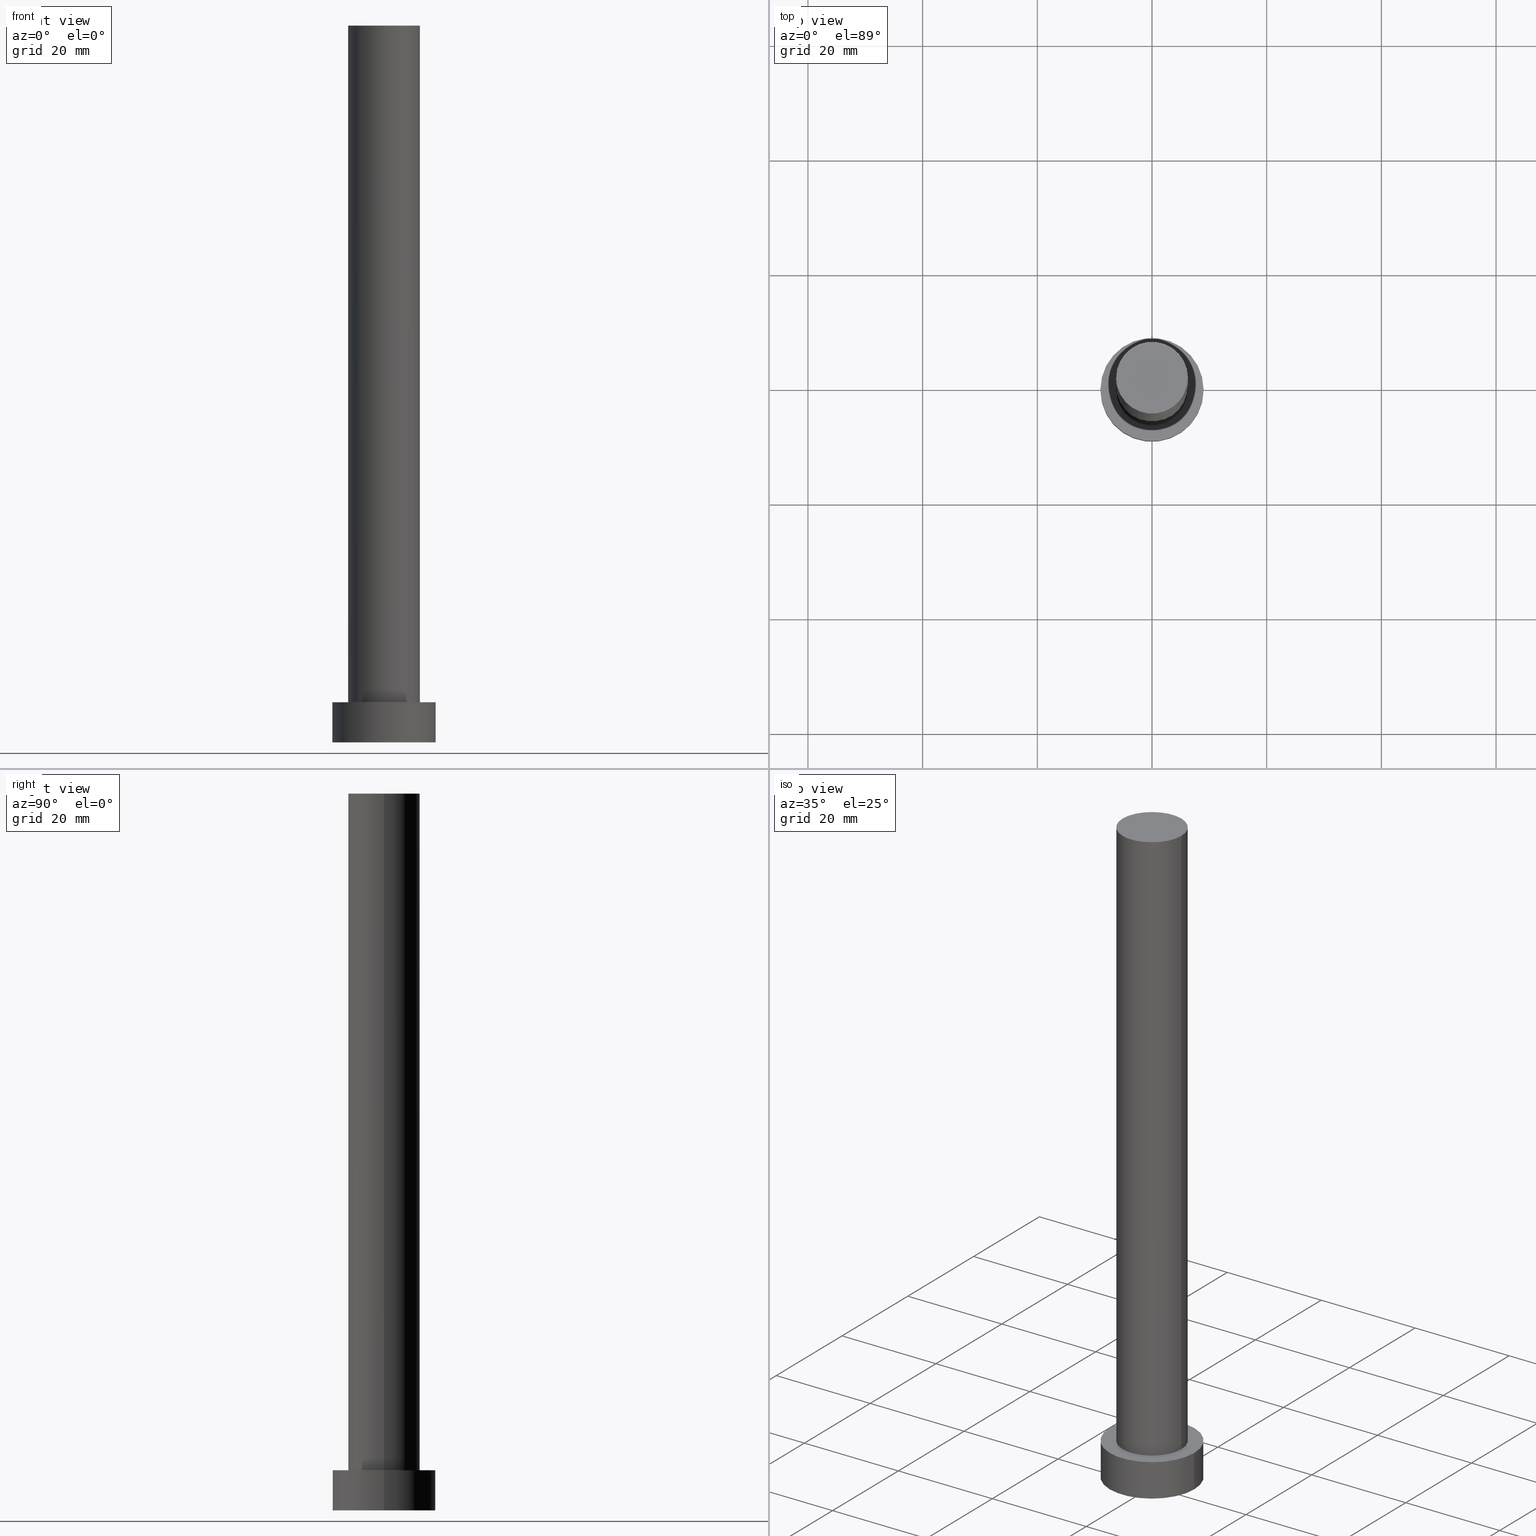
[diagram: canonical four-view strip — front | top / right | iso, engineering-drawing reading convention]
A machine part, canonical four-view strip (front | top / right | iso — engineering-drawing reading convention). The complete STEP part file that produces these views, byte-faithful:
ISO-10303-21;
HEADER;
FILE_DESCRIPTION (( 'STEP AP203' ),
    '1' );
FILE_NAME ('c26a.STEP',
    '2023-02-13T10:38:38',
    ( '' ),
    ( '' ),
    'SwSTEP 2.0',
    'SolidWorks 2019',
    '' );
FILE_SCHEMA (( 'CONFIG_CONTROL_DESIGN' ));
ENDSEC;

DATA;
#1 = CC_DESIGN_DATE_AND_TIME_ASSIGNMENT ( #35, #59, ( #8 ) ) ;
#2 = CALENDAR_DATE ( 2023, 13, 2 ) ;
#3 = APPROVAL_PERSON_ORGANIZATION ( #143, #223, #84 ) ;
#4 = ORIENTED_EDGE ( 'NONE', *, *, #112, .F. ) ;
#5 = CIRCLE ( 'NONE', #252, 6.250000000000000000 ) ;
#6 = ORIENTED_EDGE ( 'NONE', *, *, #126, .T. ) ;
#7 = CARTESIAN_POINT ( 'NONE',  ( -6.250000000000000000, 0.000000000000000000, 7.000000000000000000 ) ) ;
#8 = SECURITY_CLASSIFICATION ( '', '', #105 ) ;
#9 = DIRECTION ( 'NONE',  ( -0.000000000000000000, -0.000000000000000000, -1.000000000000000000 ) ) ;
#10 = CARTESIAN_POINT ( 'NONE',  ( 9.000000000000000000, 1.102182119232617714E-15, 0.000000000000000000 ) ) ;
#11 = CC_DESIGN_PERSON_AND_ORGANIZATION_ASSIGNMENT ( #178, #218, ( #8 ) ) ;
#12 = ORIENTED_EDGE ( 'NONE', *, *, #186, .T. ) ;
#13 = CYLINDRICAL_SURFACE ( 'NONE', #78, 6.250000000000000000 ) ;
#14 = VECTOR ( 'NONE', #119, 1000.000000000000000 ) ;
#15 = CARTESIAN_POINT ( 'NONE',  ( -9.000000000000000000, 0.000000000000000000, 7.000000000000000000 ) ) ;
#16 = CYLINDRICAL_SURFACE ( 'NONE', #31, 9.000000000000000000 ) ;
#17 = PRODUCT_DEFINITION ( 'NEZN�M�', '', #169, #164 ) ;
#18 = ORIENTED_EDGE ( 'NONE', *, *, #133, .T. ) ;
#19 = COORDINATED_UNIVERSAL_TIME_OFFSET ( 1, 0, .AHEAD. ) ;
#20 = VERTEX_POINT ( 'NONE', #7 ) ;
#21 = VERTEX_POINT ( 'NONE', #224 ) ;
#22 = ADVANCED_FACE ( 'NONE', ( #46 ), #225, .T. ) ;
#23 = APPLICATION_PROTOCOL_DEFINITION ( 'international standard', 'config_control_design', 1994, #204 ) ;
#24 = VECTOR ( 'NONE', #134, 1000.000000000000000 ) ;
#25 = DIRECTION ( 'NONE',  ( -1.000000000000000000, 0.000000000000000000, 0.000000000000000000 ) ) ;
#26 = DIRECTION ( 'NONE',  ( 1.000000000000000000, 0.000000000000000000, -0.000000000000000000 ) ) ;
#27 = CLOSED_SHELL ( 'NONE', ( #243, #76, #175, #240, #191, #22, #202 ) ) ;
#28 = EDGE_CURVE ( 'NONE', #165, #235, #74, .T. ) ;
#29 = CARTESIAN_POINT ( 'NONE',  ( 0.000000000000000000, 0.000000000000000000, 125.0000000000000000 ) ) ;
#30 = DIRECTION ( 'NONE',  ( 1.000000000000000000, 0.000000000000000000, 0.000000000000000000 ) ) ;
#31 = AXIS2_PLACEMENT_3D ( 'NONE', #244, #94, #135 ) ;
#32 = PRODUCT ( 'c26a', 'c26a', '', ( #125 ) ) ;
#33 = FACE_OUTER_BOUND ( 'NONE', #42, .T. ) ;
#34 = CC_DESIGN_PERSON_AND_ORGANIZATION_ASSIGNMENT ( #217, #163, ( #17 ) ) ;
#35 = DATE_AND_TIME ( #159, #185 ) ;
#36 = COORDINATED_UNIVERSAL_TIME_OFFSET ( 1, 0, .AHEAD. ) ;
#37 = ORIENTED_EDGE ( 'NONE', *, *, #230, .F. ) ;
#38 = EDGE_CURVE ( 'NONE', #21, #20, #70, .T. ) ;
#39 = CALENDAR_DATE ( 2023, 13, 2 ) ;
#40 = AXIS2_PLACEMENT_3D ( 'NONE', #208, #188, #129 ) ;
#41 = DIRECTION ( 'NONE',  ( 1.000000000000000000, 0.000000000000000000, 0.000000000000000000 ) ) ;
#42 = EDGE_LOOP ( 'NONE', ( #132, #63, #12, #136 ) ) ;
#43 = APPROVAL_ROLE ( '' ) ;
#44 = AXIS2_PLACEMENT_3D ( 'NONE', #29, #96, #115 ) ;
#45 = SHAPE_DEFINITION_REPRESENTATION ( #103, #212 ) ;
#46 = FACE_OUTER_BOUND ( 'NONE', #101, .T. ) ;
#47 = CC_DESIGN_DATE_AND_TIME_ASSIGNMENT ( #179, #146, ( #17 ) ) ;
#48 = CARTESIAN_POINT ( 'NONE',  ( 0.000000000000000000, 0.000000000000000000, 0.000000000000000000 ) ) ;
#49 = CIRCLE ( 'NONE', #90, 9.000000000000000000 ) ;
#50 = CARTESIAN_POINT ( 'NONE',  ( 0.000000000000000000, 0.000000000000000000, 125.0000000000000000 ) ) ;
#51 = DIRECTION ( 'NONE',  ( -0.000000000000000000, -0.000000000000000000, -1.000000000000000000 ) ) ;
#52 = ORIENTED_EDGE ( 'NONE', *, *, #148, .T. ) ;
#53 = APPROVAL_PERSON_ORGANIZATION ( #89, #251, #122 ) ;
#54 = CARTESIAN_POINT ( 'NONE',  ( 0.000000000000000000, 0.000000000000000000, 0.000000000000000000 ) ) ;
#55 = DIRECTION ( 'NONE',  ( 0.000000000000000000, 0.000000000000000000, 1.000000000000000000 ) ) ;
#56 = DIRECTION ( 'NONE',  ( 1.000000000000000000, 0.000000000000000000, 0.000000000000000000 ) ) ;
#57 = UNCERTAINTY_MEASURE_WITH_UNIT (LENGTH_MEASURE( 1.000000000000000082E-05 ), #177, 'distance_accuracy_value', 'NONE');
#58 = CIRCLE ( 'NONE', #44, 6.250000000000000000 ) ;
#59 = DATE_TIME_ROLE ( 'classification_date' ) ;
#60 = PERSON_AND_ORGANIZATION ( #81, #168 ) ;
#61 = VERTEX_POINT ( 'NONE', #206 ) ;
#62 = APPLICATION_PROTOCOL_DEFINITION ( 'international standard', 'config_control_design', 1994, #68 ) ;
#63 = ORIENTED_EDGE ( 'NONE', *, *, #144, .F. ) ;
#64 = APPROVAL_STATUS ( 'not_yet_approved' ) ;
#65 = ORIENTED_EDGE ( 'NONE', *, *, #69, .F. ) ;
#66 = MANIFOLD_SOLID_BREP ( 'P�idat vysunut�m3', #27 ) ;
#67 = VERTEX_POINT ( 'NONE', #167 ) ;
#68 = APPLICATION_CONTEXT ( 'configuration controlled 3d designs of mechanical parts and assemblies' ) ;
#69 = EDGE_CURVE ( 'NONE', #235, #165, #49, .T. ) ;
#70 = CIRCLE ( 'NONE', #40, 6.250000000000000000 ) ;
#71 = EDGE_CURVE ( 'NONE', #61, #21, #245, .T. ) ;
#72 = DIRECTION ( 'NONE',  ( 0.000000000000000000, 0.000000000000000000, 1.000000000000000000 ) ) ;
#73 = CARTESIAN_POINT ( 'NONE',  ( 0.000000000000000000, 0.000000000000000000, 7.000000000000000000 ) ) ;
#74 = CIRCLE ( 'NONE', #100, 9.000000000000000000 ) ;
#75 = CYLINDRICAL_SURFACE ( 'NONE', #106, 9.000000000000000000 ) ;
#76 = ADVANCED_FACE ( 'NONE', ( #231 ), #75, .T. ) ;
#77 = FACE_BOUND ( 'NONE', #140, .T. ) ;
#78 = AXIS2_PLACEMENT_3D ( 'NONE', #173, #97, #247 ) ;
#79 = CARTESIAN_POINT ( 'NONE',  ( -6.250000000000000000, 0.000000000000000000, 125.0000000000000000 ) ) ;
#80 = AXIS2_PLACEMENT_3D ( 'NONE', #73, #55, #158 ) ;
#81 = PERSON ( 'NEUR�EN�', 'NEUR�EN�', 'NEUR�EN�', ('NEUR�EN�'), ('NEUR�EN�'), ('NEUR�EN�') ) ;
#82 = DIRECTION ( 'NONE',  ( -1.000000000000000000, 0.000000000000000000, 0.000000000000000000 ) ) ;
#83 = PERSON_AND_ORGANIZATION ( #81, #168 ) ;
#84 = APPROVAL_ROLE ( '' ) ;
#85 = CC_DESIGN_PERSON_AND_ORGANIZATION_ASSIGNMENT ( #83, #200, ( #169 ) ) ;
#86 = CALENDAR_DATE ( 2023, 13, 2 ) ;
#87 = ORIENTED_EDGE ( 'NONE', *, *, #71, .F. ) ;
#88 = LOCAL_TIME ( 11, 38, 38.00000000000000000, #36 ) ;
#89 = PERSON_AND_ORGANIZATION ( #81, #168 ) ;
#90 = AXIS2_PLACEMENT_3D ( 'NONE', #239, #209, #30 ) ;
#91 = CC_DESIGN_PERSON_AND_ORGANIZATION_ASSIGNMENT ( #161, #149, ( #169 ) ) ;
#92 = CC_DESIGN_APPROVAL ( #98, ( #17 ) ) ;
#93 = LOCAL_TIME ( 11, 38, 38.00000000000000000, #166 ) ;
#94 = DIRECTION ( 'NONE',  ( -0.000000000000000000, -0.000000000000000000, -1.000000000000000000 ) ) ;
#95 = VECTOR ( 'NONE', #9, 1000.000000000000000 ) ;
#96 = DIRECTION ( 'NONE',  ( 0.000000000000000000, 0.000000000000000000, 1.000000000000000000 ) ) ;
#97 = DIRECTION ( 'NONE',  ( -0.000000000000000000, -0.000000000000000000, -1.000000000000000000 ) ) ;
#98 = APPROVAL ( #198, 'NEUR�EN�' ) ;
#99 = FACE_OUTER_BOUND ( 'NONE', #203, .T. ) ;
#100 = AXIS2_PLACEMENT_3D ( 'NONE', #48, #72, #187 ) ;
#101 = EDGE_LOOP ( 'NONE', ( #87, #201, #254, #6 ) ) ;
#102 = COORDINATED_UNIVERSAL_TIME_OFFSET ( 1, 0, .AHEAD. ) ;
#103 = PRODUCT_DEFINITION_SHAPE ( 'NONE', 'NONE',  #17 ) ;
#104 = APPROVAL_PERSON_ORGANIZATION ( #60, #98, #43 ) ;
#105 = SECURITY_CLASSIFICATION_LEVEL ( 'unclassified' ) ;
#106 = AXIS2_PLACEMENT_3D ( 'NONE', #232, #249, #82 ) ;
#107 = CALENDAR_DATE ( 2023, 13, 2 ) ;
#108 = EDGE_LOOP ( 'NONE', ( #4, #52, #234, #222 ) ) ;
#109 = CC_DESIGN_APPROVAL ( #251, ( #169 ) ) ;
#110 = DATE_AND_TIME ( #39, #128 ) ;
#111 =( GEOMETRIC_REPRESENTATION_CONTEXT ( 3 ) GLOBAL_UNCERTAINTY_ASSIGNED_CONTEXT ( ( #57 ) ) GLOBAL_UNIT_ASSIGNED_CONTEXT ( ( #177, #220, #150 ) ) REPRESENTATION_CONTEXT ( 'NONE', 'WORKASPACE' ) );
#112 = EDGE_CURVE ( 'NONE', #193, #67, #116, .T. ) ;
#113 = DIRECTION ( 'NONE',  ( 0.000000000000000000, 0.000000000000000000, 1.000000000000000000 ) ) ;
#114 = LOCAL_TIME ( 11, 38, 38.00000000000000000, #102 ) ;
#115 = DIRECTION ( 'NONE',  ( 1.000000000000000000, 0.000000000000000000, 0.000000000000000000 ) ) ;
#116 = CIRCLE ( 'NONE', #156, 9.000000000000000000 ) ;
#117 = ORIENTED_EDGE ( 'NONE', *, *, #112, .T. ) ;
#118 = DIRECTION ( 'NONE',  ( 1.000000000000000000, 0.000000000000000000, -0.000000000000000000 ) ) ;
#119 = DIRECTION ( 'NONE',  ( -0.000000000000000000, -0.000000000000000000, -1.000000000000000000 ) ) ;
#120 = CARTESIAN_POINT ( 'NONE',  ( 9.000000000000000000, 1.102182119232617714E-15, 7.000000000000000000 ) ) ;
#121 = COORDINATED_UNIVERSAL_TIME_OFFSET ( 1, 0, .AHEAD. ) ;
#122 = APPROVAL_ROLE ( '' ) ;
#123 = AXIS2_PLACEMENT_3D ( 'NONE', #221, #253, #41 ) ;
#124 = ORIENTED_EDGE ( 'NONE', *, *, #152, .F. ) ;
#125 = MECHANICAL_CONTEXT ( 'NONE', #68, 'mechanical' ) ;
#126 = EDGE_CURVE ( 'NONE', #20, #21, #137, .T. ) ;
#127 = ORIENTED_EDGE ( 'NONE', *, *, #71, .T. ) ;
#128 = LOCAL_TIME ( 11, 38, 38.00000000000000000, #121 ) ;
#129 = DIRECTION ( 'NONE',  ( 1.000000000000000000, 0.000000000000000000, 0.000000000000000000 ) ) ;
#130 = AXIS2_PLACEMENT_3D ( 'NONE', #141, #154, #227 ) ;
#131 = CARTESIAN_POINT ( 'NONE',  ( 0.000000000000000000, 0.000000000000000000, 125.0000000000000000 ) ) ;
#132 = ORIENTED_EDGE ( 'NONE', *, *, #148, .F. ) ;
#133 = EDGE_CURVE ( 'NONE', #248, #61, #5, .T. ) ;
#134 = DIRECTION ( 'NONE',  ( -0.000000000000000000, -0.000000000000000000, -1.000000000000000000 ) ) ;
#135 = DIRECTION ( 'NONE',  ( -1.000000000000000000, 0.000000000000000000, 0.000000000000000000 ) ) ;
#136 = ORIENTED_EDGE ( 'NONE', *, *, #69, .T. ) ;
#137 = CIRCLE ( 'NONE', #80, 6.250000000000000000 ) ;
#138 = CARTESIAN_POINT ( 'NONE',  ( 0.000000000000000000, 0.000000000000000000, 7.000000000000000000 ) ) ;
#139 = DIRECTION ( 'NONE',  ( 1.000000000000000000, 0.000000000000000000, -0.000000000000000000 ) ) ;
#140 = EDGE_LOOP ( 'NONE', ( #180, #162 ) ) ;
#141 = CARTESIAN_POINT ( 'NONE',  ( 0.000000000000000000, 0.000000000000000000, 7.000000000000000000 ) ) ;
#142 = CC_DESIGN_APPROVAL ( #223, ( #8 ) ) ;
#143 = PERSON_AND_ORGANIZATION ( #81, #168 ) ;
#144 = EDGE_CURVE ( 'NONE', #67, #193, #151, .T. ) ;
#145 = APPROVAL_DATE_TIME ( #176, #98 ) ;
#146 = DATE_TIME_ROLE ( 'creation_date' ) ;
#147 = EDGE_LOOP ( 'NONE', ( #18, #199 ) ) ;
#148 = EDGE_CURVE ( 'NONE', #193, #165, #215, .T. ) ;
#149 = PERSON_AND_ORGANIZATION_ROLE ( 'creator' ) ;
#150 =( NAMED_UNIT ( * ) SI_UNIT ( $, .STERADIAN. ) SOLID_ANGLE_UNIT ( ) );
#151 = CIRCLE ( 'NONE', #130, 9.000000000000000000 ) ;
#152 = EDGE_CURVE ( 'NONE', #248, #20, #195, .T. ) ;
#153 = PLANE ( 'NONE',  #242 ) ;
#154 = DIRECTION ( 'NONE',  ( 0.000000000000000000, 0.000000000000000000, 1.000000000000000000 ) ) ;
#155 = PLANE ( 'NONE',  #205 ) ;
#156 = AXIS2_PLACEMENT_3D ( 'NONE', #197, #113, #56 ) ;
#157 = LINE ( 'NONE', #15, #24 ) ;
#158 = DIRECTION ( 'NONE',  ( 1.000000000000000000, 0.000000000000000000, 0.000000000000000000 ) ) ;
#159 = CALENDAR_DATE ( 2023, 13, 2 ) ;
#160 = PERSON_AND_ORGANIZATION_ROLE ( 'design_owner' ) ;
#161 = PERSON_AND_ORGANIZATION ( #81, #168 ) ;
#162 = ORIENTED_EDGE ( 'NONE', *, *, #38, .F. ) ;
#163 = PERSON_AND_ORGANIZATION_ROLE ( 'creator' ) ;
#164 = DESIGN_CONTEXT ( 'detailed design', #204, 'design' ) ;
#165 = VERTEX_POINT ( 'NONE', #10 ) ;
#166 = COORDINATED_UNIVERSAL_TIME_OFFSET ( 1, 0, .AHEAD. ) ;
#167 = CARTESIAN_POINT ( 'NONE',  ( -9.000000000000000000, 0.000000000000000000, 7.000000000000000000 ) ) ;
#168 = ORGANIZATION ( 'NEUR�EN�', 'NEUR�EN�', '' ) ;
#169 = PRODUCT_DEFINITION_FORMATION_WITH_SPECIFIED_SOURCE ( 'LIBOVOLN�', '', #32, .NOT_KNOWN. ) ;
#170 = DIRECTION ( 'NONE',  ( 0.000000000000000000, 0.000000000000000000, 1.000000000000000000 ) ) ;
#171 = FACE_OUTER_BOUND ( 'NONE', #211, .T. ) ;
#172 = PLANE ( 'NONE',  #181 ) ;
#173 = CARTESIAN_POINT ( 'NONE',  ( 0.000000000000000000, 0.000000000000000000, 125.0000000000000000 ) ) ;
#174 = CARTESIAN_POINT ( 'NONE',  ( 0.000000000000000000, 0.000000000000000000, 125.0000000000000000 ) ) ;
#175 = ADVANCED_FACE ( 'NONE', ( #33 ), #16, .T. ) ;
#176 = DATE_AND_TIME ( #86, #114 ) ;
#177 =( LENGTH_UNIT ( ) NAMED_UNIT ( * ) SI_UNIT ( .MILLI., .METRE. ) );
#178 = PERSON_AND_ORGANIZATION ( #81, #168 ) ;
#179 = DATE_AND_TIME ( #107, #88 ) ;
#180 = ORIENTED_EDGE ( 'NONE', *, *, #126, .F. ) ;
#181 = AXIS2_PLACEMENT_3D ( 'NONE', #50, #229, #26 ) ;
#182 = ORIENTED_EDGE ( 'NONE', *, *, #38, .T. ) ;
#183 = PRODUCT_RELATED_PRODUCT_CATEGORY ( 'detail', '', ( #32 ) ) ;
#184 = APPROVAL_DATE_TIME ( #110, #223 ) ;
#185 = LOCAL_TIME ( 11, 38, 38.00000000000000000, #19 ) ;
#186 = EDGE_CURVE ( 'NONE', #67, #235, #157, .T. ) ;
#187 = DIRECTION ( 'NONE',  ( 1.000000000000000000, 0.000000000000000000, 0.000000000000000000 ) ) ;
#188 = DIRECTION ( 'NONE',  ( 0.000000000000000000, 0.000000000000000000, 1.000000000000000000 ) ) ;
#189 = CC_DESIGN_SECURITY_CLASSIFICATION ( #8, ( #169 ) ) ;
#190 = DIRECTION ( 'NONE',  ( 1.000000000000000000, 0.000000000000000000, 0.000000000000000000 ) ) ;
#191 = ADVANCED_FACE ( 'NONE', ( #171 ), #153, .F. ) ;
#192 = CARTESIAN_POINT ( 'NONE',  ( 6.250000000000000000, 7.654042494670957606E-16, 125.0000000000000000 ) ) ;
#193 = VERTEX_POINT ( 'NONE', #226 ) ;
#194 = FACE_OUTER_BOUND ( 'NONE', #228, .T. ) ;
#195 = LINE ( 'NONE', #79, #196 ) ;
#196 = VECTOR ( 'NONE', #51, 1000.000000000000000 ) ;
#197 = CARTESIAN_POINT ( 'NONE',  ( 0.000000000000000000, 0.000000000000000000, 7.000000000000000000 ) ) ;
#198 = APPROVAL_STATUS ( 'not_yet_approved' ) ;
#199 = ORIENTED_EDGE ( 'NONE', *, *, #230, .T. ) ;
#200 = PERSON_AND_ORGANIZATION_ROLE ( 'design_supplier' ) ;
#201 = ORIENTED_EDGE ( 'NONE', *, *, #133, .F. ) ;
#202 = ADVANCED_FACE ( 'NONE', ( #214 ), #172, .T. ) ;
#203 = EDGE_LOOP ( 'NONE', ( #238, #117 ) ) ;
#204 = APPLICATION_CONTEXT ( 'configuration controlled 3d designs of mechanical parts and assemblies' ) ;
#205 = AXIS2_PLACEMENT_3D ( 'NONE', #138, #213, #118 ) ;
#206 = CARTESIAN_POINT ( 'NONE',  ( 6.250000000000000000, 7.654042494670957606E-16, 125.0000000000000000 ) ) ;
#207 = AXIS2_PLACEMENT_3D ( 'NONE', #131, #241, #25 ) ;
#208 = CARTESIAN_POINT ( 'NONE',  ( 0.000000000000000000, 0.000000000000000000, 7.000000000000000000 ) ) ;
#209 = DIRECTION ( 'NONE',  ( 0.000000000000000000, 0.000000000000000000, 1.000000000000000000 ) ) ;
#210 = DIRECTION ( 'NONE',  ( 0.000000000000000000, 0.000000000000000000, 1.000000000000000000 ) ) ;
#211 = EDGE_LOOP ( 'NONE', ( #65, #219 ) ) ;
#212 = ADVANCED_BREP_SHAPE_REPRESENTATION ( 'c26a', ( #66, #123 ), #111 ) ;
#213 = DIRECTION ( 'NONE',  ( 0.000000000000000000, 0.000000000000000000, 1.000000000000000000 ) ) ;
#214 = FACE_OUTER_BOUND ( 'NONE', #147, .T. ) ;
#215 = LINE ( 'NONE', #120, #14 ) ;
#216 = APPROVAL_STATUS ( 'not_yet_approved' ) ;
#217 = PERSON_AND_ORGANIZATION ( #81, #168 ) ;
#218 = PERSON_AND_ORGANIZATION_ROLE ( 'classification_officer' ) ;
#219 = ORIENTED_EDGE ( 'NONE', *, *, #28, .F. ) ;
#220 =( NAMED_UNIT ( * ) PLANE_ANGLE_UNIT ( ) SI_UNIT ( $, .RADIAN. ) );
#221 = CARTESIAN_POINT ( 'NONE',  ( 0.000000000000000000, 0.000000000000000000, 0.000000000000000000 ) ) ;
#222 = ORIENTED_EDGE ( 'NONE', *, *, #186, .F. ) ;
#223 = APPROVAL ( #216, 'NEUR�EN�' ) ;
#224 = CARTESIAN_POINT ( 'NONE',  ( 6.250000000000000000, 7.654042494670957606E-16, 7.000000000000000000 ) ) ;
#225 = CYLINDRICAL_SURFACE ( 'NONE', #207, 6.250000000000000000 ) ;
#226 = CARTESIAN_POINT ( 'NONE',  ( 9.000000000000000000, 1.102182119232617714E-15, 7.000000000000000000 ) ) ;
#227 = DIRECTION ( 'NONE',  ( 1.000000000000000000, 0.000000000000000000, 0.000000000000000000 ) ) ;
#228 = EDGE_LOOP ( 'NONE', ( #37, #127, #182, #124 ) ) ;
#229 = DIRECTION ( 'NONE',  ( 0.000000000000000000, 0.000000000000000000, 1.000000000000000000 ) ) ;
#230 = EDGE_CURVE ( 'NONE', #61, #248, #58, .T. ) ;
#231 = FACE_OUTER_BOUND ( 'NONE', #108, .T. ) ;
#232 = CARTESIAN_POINT ( 'NONE',  ( 0.000000000000000000, 0.000000000000000000, 7.000000000000000000 ) ) ;
#233 = CARTESIAN_POINT ( 'NONE',  ( -6.250000000000000000, 0.000000000000000000, 125.0000000000000000 ) ) ;
#234 = ORIENTED_EDGE ( 'NONE', *, *, #28, .T. ) ;
#235 = VERTEX_POINT ( 'NONE', #246 ) ;
#236 = CC_DESIGN_PERSON_AND_ORGANIZATION_ASSIGNMENT ( #255, #160, ( #32 ) ) ;
#237 = DATE_AND_TIME ( #2, #93 ) ;
#238 = ORIENTED_EDGE ( 'NONE', *, *, #144, .T. ) ;
#239 = CARTESIAN_POINT ( 'NONE',  ( 0.000000000000000000, 0.000000000000000000, 0.000000000000000000 ) ) ;
#240 = ADVANCED_FACE ( 'NONE', ( #77, #99 ), #155, .T. ) ;
#241 = DIRECTION ( 'NONE',  ( -0.000000000000000000, -0.000000000000000000, -1.000000000000000000 ) ) ;
#242 = AXIS2_PLACEMENT_3D ( 'NONE', #54, #210, #139 ) ;
#243 = ADVANCED_FACE ( 'NONE', ( #194 ), #13, .T. ) ;
#244 = CARTESIAN_POINT ( 'NONE',  ( 0.000000000000000000, 0.000000000000000000, 7.000000000000000000 ) ) ;
#245 = LINE ( 'NONE', #192, #95 ) ;
#246 = CARTESIAN_POINT ( 'NONE',  ( -9.000000000000000000, 0.000000000000000000, 0.000000000000000000 ) ) ;
#247 = DIRECTION ( 'NONE',  ( -1.000000000000000000, 0.000000000000000000, 0.000000000000000000 ) ) ;
#248 = VERTEX_POINT ( 'NONE', #233 ) ;
#249 = DIRECTION ( 'NONE',  ( -0.000000000000000000, -0.000000000000000000, -1.000000000000000000 ) ) ;
#250 = APPROVAL_DATE_TIME ( #237, #251 ) ;
#251 = APPROVAL ( #64, 'NEUR�EN�' ) ;
#252 = AXIS2_PLACEMENT_3D ( 'NONE', #174, #170, #190 ) ;
#253 = DIRECTION ( 'NONE',  ( 0.000000000000000000, 0.000000000000000000, 1.000000000000000000 ) ) ;
#254 = ORIENTED_EDGE ( 'NONE', *, *, #152, .T. ) ;
#255 = PERSON_AND_ORGANIZATION ( #81, #168 ) ;
ENDSEC;
END-ISO-10303-21;
